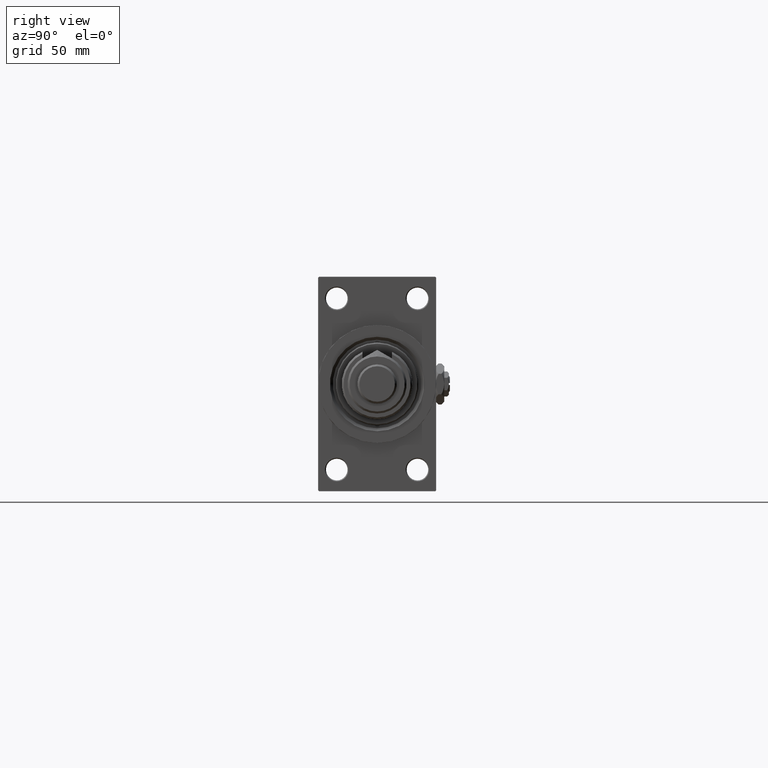
[diagram: clean part render]
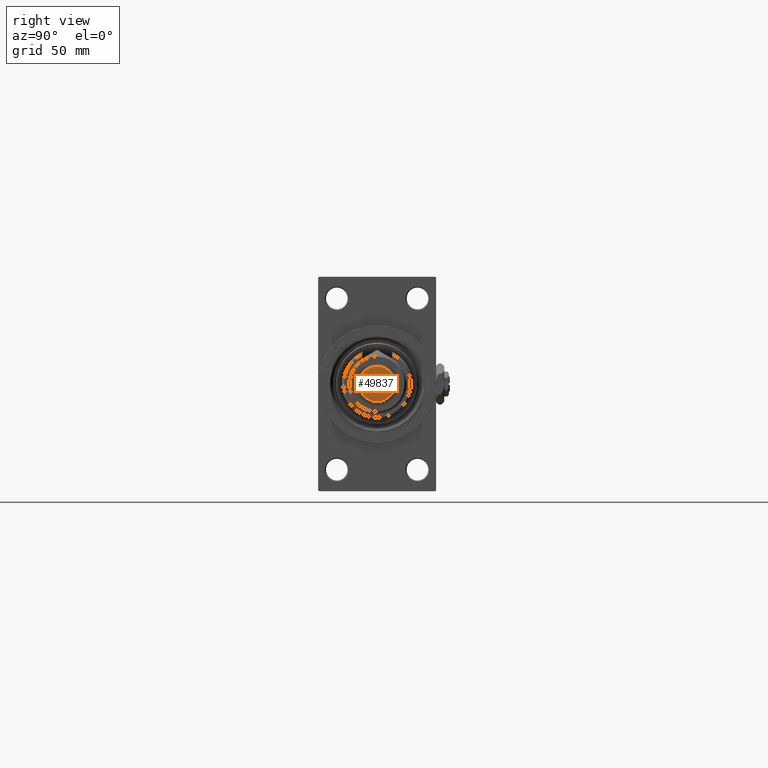
[diagram: same view with one face highlighted and labeled with its STEP entity id]
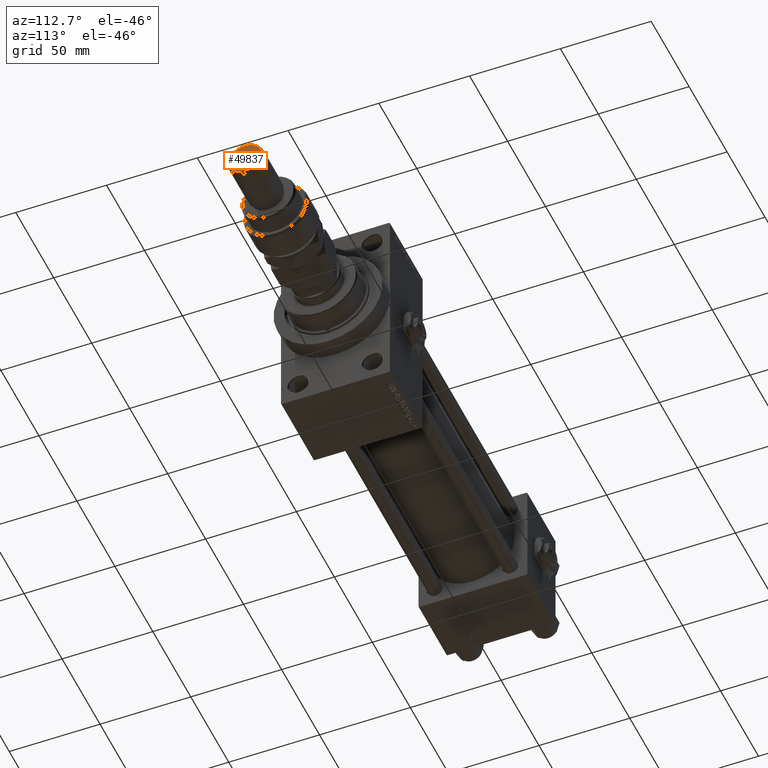
[diagram: same view with one face highlighted and labeled with its STEP entity id]
A machine part, right view. The second image highlights one B-rep face of the part: STEP entity #49837.
A second angle (auxiliary view) of the same face is appended — the face is thin or edge-on in the first view.
In plain terms, the highlighted planar face has unit normal (1, 0, 0).
Its self-contained STEP definition (entity closure, byte-faithful):
#1404 = EDGE_CURVE ( 'NONE', #24317, #37530, #42857, .T. ) ;
#1625 = AXIS2_PLACEMENT_3D ( 'NONE', #35918, #32976, #24252 ) ;
#4870 = CARTESIAN_POINT ( 'NONE',  ( 0.000000000000000000, 0.000000000000000000, 56.00000000000000711 ) ) ;
#11366 = ORIENTED_EDGE ( 'NONE', *, *, #43397, .T. ) ;
#11470 = CARTESIAN_POINT ( 'NONE',  ( 0.000000000000000000, 0.000000000000000000, 56.00000000000000711 ) ) ;
#15190 = DIRECTION ( 'NONE',  ( 1.000000000000000000, 0.000000000000000000, -0.000000000000000000 ) ) ;
#17076 = DIRECTION ( 'NONE',  ( 1.000000000000000000, 0.000000000000000000, 0.000000000000000000 ) ) ;
#21064 = DIRECTION ( 'NONE',  ( 0.000000000000000000, 0.000000000000000000, 1.000000000000000000 ) ) ;
#24252 = DIRECTION ( 'NONE',  ( 1.000000000000000000, 0.000000000000000000, 0.000000000000000000 ) ) ;
#24317 = VERTEX_POINT ( 'NONE', #36468 ) ;
#26340 = ORIENTED_EDGE ( 'NONE', *, *, #1404, .T. ) ;
#32976 = DIRECTION ( 'NONE',  ( 0.000000000000000000, 0.000000000000000000, 1.000000000000000000 ) ) ;
#33556 = AXIS2_PLACEMENT_3D ( 'NONE', #4870, #21064, #17076 ) ;
#33954 = AXIS2_PLACEMENT_3D ( 'NONE', #11470, #51502, #15190 ) ;
#35322 = FACE_OUTER_BOUND ( 'NONE', #45240, .T. ) ;
#35587 = PLANE ( 'NONE',  #33954 ) ;
#35918 = CARTESIAN_POINT ( 'NONE',  ( 0.000000000000000000, 0.000000000000000000, 56.00000000000000711 ) ) ;
#36468 = CARTESIAN_POINT ( 'NONE',  ( 8.999999999999987566, 1.163414459189984894E-15, 56.00000000000000711 ) ) ;
#37530 = VERTEX_POINT ( 'NONE', #47389 ) ;
#42857 = CIRCLE ( 'NONE', #33556, 8.999999999999987566 ) ;
#43397 = EDGE_CURVE ( 'NONE', #37530, #24317, #50774, .T. ) ;
#45240 = EDGE_LOOP ( 'NONE', ( #11366, #26340 ) ) ;
#47389 = CARTESIAN_POINT ( 'NONE',  ( -8.999999999999987566, 0.000000000000000000, 56.00000000000000711 ) ) ;
#49837 = ADVANCED_FACE ( 'NONE', ( #35322 ), #35587, .T. ) ;
#50774 = CIRCLE ( 'NONE', #1625, 8.999999999999987566 ) ;
#51502 = DIRECTION ( 'NONE',  ( 0.000000000000000000, 0.000000000000000000, 1.000000000000000000 ) ) ;